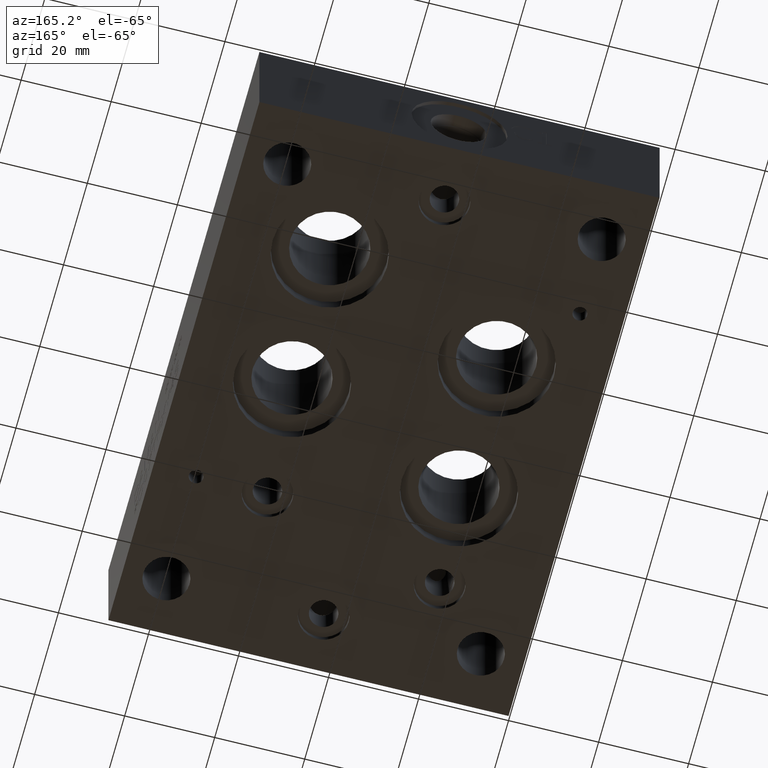
[diagram: clean part render]
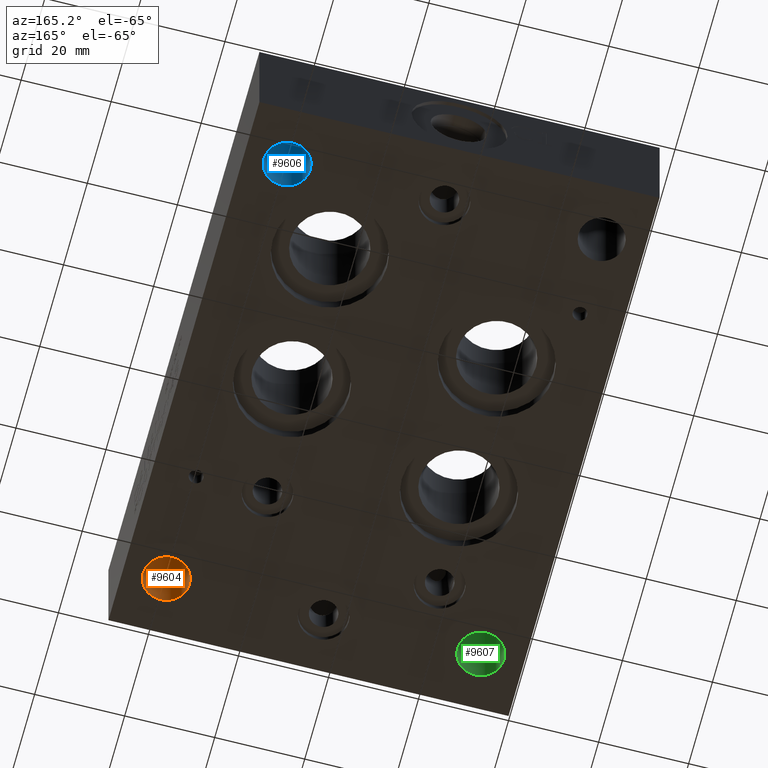
[diagram: same view with three faces highlighted in distinct colors, each labeled with its STEP entity id]
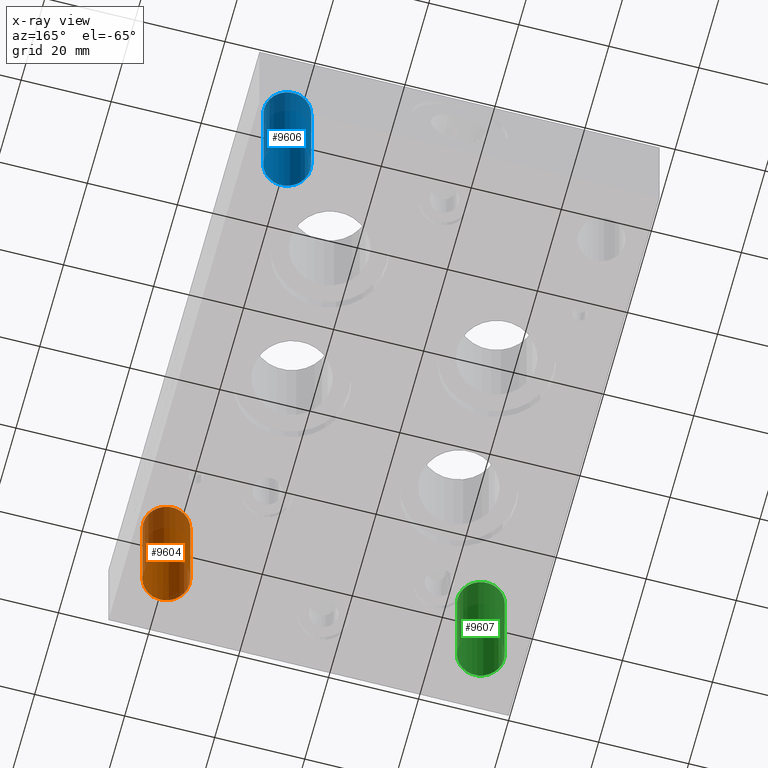
[diagram: x-ray of the same camera — body ghosted, the three highlighted faces saturated]
A machine part, auxiliary view with three faces highlighted in distinct colors.
The next image is the same camera in x-ray (body ghosted, the three faces saturated) — at least one of them is partly hidden behind the body in this view.
Their STEP definitions:

[orange] entity #9604 — the highlighted cylindrical surface (bore or boss wall) has radius 5.1562 mm, axis along (0, 0, -1).
#107=CIRCLE('',#10070,5.1562);
#108=CIRCLE('',#10071,5.1562);
#109=CIRCLE('',#10072,5.1562);
#230=CYLINDRICAL_SURFACE('',#10069,5.1562);
#1076=FACE_OUTER_BOUND('',#1588,.T.);
#1588=EDGE_LOOP('',(#8017,#8018,#8019,#8020,#8021));
#2583=LINE('',#16146,#3522);
#3522=VECTOR('',#11901,5.1562);
#4376=VERTEX_POINT('',#16141);
#4377=VERTEX_POINT('',#16142);
#4378=VERTEX_POINT('',#16145);
#5664=EDGE_CURVE('',#4376,#4377,#107,.T.);
#5665=EDGE_CURVE('',#4377,#4376,#108,.T.);
#5666=EDGE_CURVE('',#4377,#4378,#2583,.T.);
#5667=EDGE_CURVE('',#4378,#4378,#109,.T.);
#8017=ORIENTED_EDGE('',*,*,#5664,.F.);
#8018=ORIENTED_EDGE('',*,*,#5665,.F.);
#8019=ORIENTED_EDGE('',*,*,#5666,.T.);
#8020=ORIENTED_EDGE('',*,*,#5667,.F.);
#8021=ORIENTED_EDGE('',*,*,#5666,.F.);
#9604=ADVANCED_FACE('',(#1076),#230,.F.);
#10069=AXIS2_PLACEMENT_3D('',#16140,#11895,#11896);
#10070=AXIS2_PLACEMENT_3D('',#16143,#11897,#11898);
#10071=AXIS2_PLACEMENT_3D('',#16144,#11899,#11900);
#10072=AXIS2_PLACEMENT_3D('',#16147,#11902,#11903);
#11895=DIRECTION('center_axis',(0.,0.,-1.));
#11896=DIRECTION('ref_axis',(1.,0.,0.));
#11897=DIRECTION('center_axis',(0.,0.,1.));
#11898=DIRECTION('ref_axis',(1.,0.,0.));
#11899=DIRECTION('center_axis',(0.,0.,1.));
#11900=DIRECTION('ref_axis',(1.,0.,0.));
#11901=DIRECTION('',(0.,0.,1.));
#11902=DIRECTION('center_axis',(0.,0.,-1.));
#11903=DIRECTION('ref_axis',(1.,0.,0.));
#16140=CARTESIAN_POINT('Origin',(79.375,12.7,157.090324762651));
#16141=CARTESIAN_POINT('',(84.5312,12.7,0.));
#16142=CARTESIAN_POINT('',(74.2188,12.7,0.));
#16143=CARTESIAN_POINT('Origin',(79.375,12.7,0.));
#16144=CARTESIAN_POINT('Origin',(79.375,12.7,0.));
#16145=CARTESIAN_POINT('',(74.2188,12.7,25.4));
#16146=CARTESIAN_POINT('',(74.2188,12.7,157.090324762651));
#16147=CARTESIAN_POINT('Origin',(79.375,12.7,25.4));

[blue] entity #9606 — the highlighted cylindrical surface (bore or boss wall) has radius 5.1562 mm, axis along (0, 0, -1).
#113=CIRCLE('',#10078,5.1562);
#114=CIRCLE('',#10079,5.1562);
#115=CIRCLE('',#10080,5.1562);
#232=CYLINDRICAL_SURFACE('',#10077,5.1562);
#1078=FACE_OUTER_BOUND('',#1590,.T.);
#1590=EDGE_LOOP('',(#8027,#8028,#8029,#8030,#8031));
#2585=LINE('',#16162,#3524);
#3524=VECTOR('',#11919,5.1562);
#4382=VERTEX_POINT('',#16157);
#4383=VERTEX_POINT('',#16158);
#4384=VERTEX_POINT('',#16161);
#5672=EDGE_CURVE('',#4382,#4383,#113,.T.);
#5673=EDGE_CURVE('',#4383,#4382,#114,.T.);
#5674=EDGE_CURVE('',#4383,#4384,#2585,.T.);
#5675=EDGE_CURVE('',#4384,#4384,#115,.T.);
#8027=ORIENTED_EDGE('',*,*,#5672,.F.);
#8028=ORIENTED_EDGE('',*,*,#5673,.F.);
#8029=ORIENTED_EDGE('',*,*,#5674,.T.);
#8030=ORIENTED_EDGE('',*,*,#5675,.F.);
#8031=ORIENTED_EDGE('',*,*,#5674,.F.);
#9606=ADVANCED_FACE('',(#1078),#232,.F.);
#10077=AXIS2_PLACEMENT_3D('',#16156,#11913,#11914);
#10078=AXIS2_PLACEMENT_3D('',#16159,#11915,#11916);
#10079=AXIS2_PLACEMENT_3D('',#16160,#11917,#11918);
#10080=AXIS2_PLACEMENT_3D('',#16163,#11920,#11921);
#11913=DIRECTION('center_axis',(0.,0.,-1.));
#11914=DIRECTION('ref_axis',(1.,0.,0.));
#11915=DIRECTION('center_axis',(0.,0.,1.));
#11916=DIRECTION('ref_axis',(1.,0.,0.));
#11917=DIRECTION('center_axis',(0.,0.,1.));
#11918=DIRECTION('ref_axis',(1.,0.,0.));
#11919=DIRECTION('',(0.,0.,1.));
#11920=DIRECTION('center_axis',(0.,0.,-1.));
#11921=DIRECTION('ref_axis',(1.,0.,0.));
#16156=CARTESIAN_POINT('Origin',(79.375,114.3,157.090324762651));
#16157=CARTESIAN_POINT('',(84.5312,114.3,0.));
#16158=CARTESIAN_POINT('',(74.2188,114.3,0.));
#16159=CARTESIAN_POINT('Origin',(79.375,114.3,0.));
#16160=CARTESIAN_POINT('Origin',(79.375,114.3,0.));
#16161=CARTESIAN_POINT('',(74.2188,114.3,25.4));
#16162=CARTESIAN_POINT('',(74.2188,114.3,157.090324762651));
#16163=CARTESIAN_POINT('Origin',(79.375,114.3,25.4));

[green] entity #9607 — the highlighted cylindrical surface (bore or boss wall) has radius 5.1562 mm, axis along (0, 0, -1).
#116=CIRCLE('',#10082,5.1562);
#117=CIRCLE('',#10083,5.1562);
#118=CIRCLE('',#10084,5.1562);
#233=CYLINDRICAL_SURFACE('',#10081,5.1562);
#1079=FACE_OUTER_BOUND('',#1591,.T.);
#1591=EDGE_LOOP('',(#8032,#8033,#8034,#8035,#8036));
#2586=LINE('',#16170,#3525);
#3525=VECTOR('',#11928,5.1562);
#4385=VERTEX_POINT('',#16165);
#4386=VERTEX_POINT('',#16166);
#4387=VERTEX_POINT('',#16169);
#5676=EDGE_CURVE('',#4385,#4386,#116,.T.);
#5677=EDGE_CURVE('',#4386,#4385,#117,.T.);
#5678=EDGE_CURVE('',#4386,#4387,#2586,.T.);
#5679=EDGE_CURVE('',#4387,#4387,#118,.T.);
#8032=ORIENTED_EDGE('',*,*,#5676,.F.);
#8033=ORIENTED_EDGE('',*,*,#5677,.F.);
#8034=ORIENTED_EDGE('',*,*,#5678,.T.);
#8035=ORIENTED_EDGE('',*,*,#5679,.F.);
#8036=ORIENTED_EDGE('',*,*,#5678,.F.);
#9607=ADVANCED_FACE('',(#1079),#233,.F.);
#10081=AXIS2_PLACEMENT_3D('',#16164,#11922,#11923);
#10082=AXIS2_PLACEMENT_3D('',#16167,#11924,#11925);
#10083=AXIS2_PLACEMENT_3D('',#16168,#11926,#11927);
#10084=AXIS2_PLACEMENT_3D('',#16171,#11929,#11930);
#11922=DIRECTION('center_axis',(0.,0.,-1.));
#11923=DIRECTION('ref_axis',(1.,0.,0.));
#11924=DIRECTION('center_axis',(0.,0.,1.));
#11925=DIRECTION('ref_axis',(1.,0.,0.));
#11926=DIRECTION('center_axis',(0.,0.,1.));
#11927=DIRECTION('ref_axis',(1.,0.,0.));
#11928=DIRECTION('',(0.,0.,1.));
#11929=DIRECTION('center_axis',(0.,0.,-1.));
#11930=DIRECTION('ref_axis',(1.,0.,0.));
#16164=CARTESIAN_POINT('Origin',(9.525,12.7,157.090324762651));
#16165=CARTESIAN_POINT('',(14.6812,12.7,0.));
#16166=CARTESIAN_POINT('',(4.3688,12.7,0.));
#16167=CARTESIAN_POINT('Origin',(9.525,12.7,0.));
#16168=CARTESIAN_POINT('Origin',(9.525,12.7,0.));
#16169=CARTESIAN_POINT('',(4.3688,12.7,25.4));
#16170=CARTESIAN_POINT('',(4.3688,12.7,157.090324762651));
#16171=CARTESIAN_POINT('Origin',(9.525,12.7,25.4));